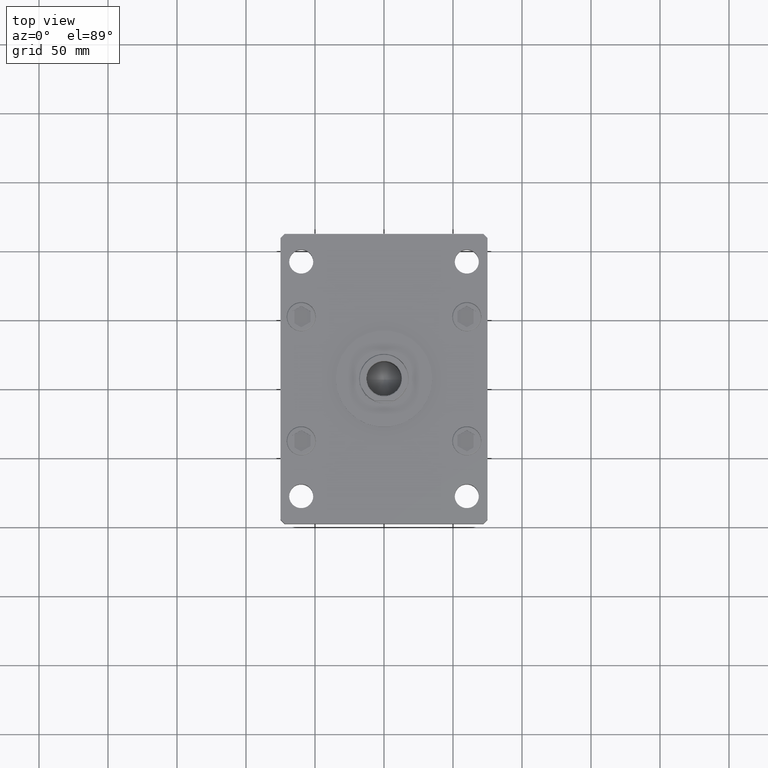
[diagram: clean part render]
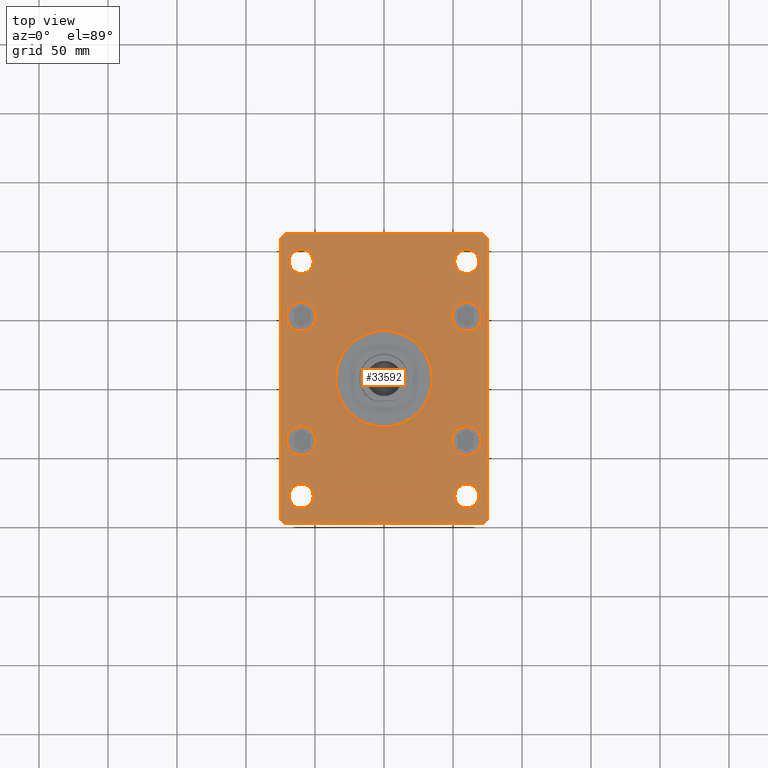
[diagram: same view with one face highlighted and labeled with its STEP entity id]
A machine part, top view. The second image highlights one B-rep face of the part: STEP entity #33592.
In plain terms, the highlighted planar face has unit normal (0, 0, 1).
Its self-contained STEP definition (entity closure, byte-faithful):
#512 = DIRECTION ( 'NONE',  ( 0.000000000000000000, 0.000000000000000000, 1.000000000000000000 ) ) ;
#564 = EDGE_CURVE ( 'NONE', #3722, #9821, #18476, .T. ) ;
#569 = EDGE_CURVE ( 'NONE', #27214, #14566, #21537, .T. ) ;
#916 = VECTOR ( 'NONE', #19822, 1000.000000000000114 ) ;
#1023 = AXIS2_PLACEMENT_3D ( 'NONE', #48198, #51457, #26909 ) ;
#1066 = ORIENTED_EDGE ( 'NONE', *, *, #569, .T. ) ;
#1118 = DIRECTION ( 'NONE',  ( -0.7071067811865459074, -0.7071067811865491270, 0.000000000000000000 ) ) ;
#1167 = CARTESIAN_POINT ( 'NONE',  ( 68.75000000000000000, 84.99999999999998579, 27.00000000000000000 ) ) ;
#1175 = DIRECTION ( 'NONE',  ( 6.802837160693364103E-17, 1.000000000000000000, 0.000000000000000000 ) ) ;
#1546 = CARTESIAN_POINT ( 'NONE',  ( 51.24999999999998579, 84.99999999999998579, 27.00000000000000000 ) ) ;
#1754 = VECTOR ( 'NONE', #38622, 1000.000000000000114 ) ;
#1787 = CARTESIAN_POINT ( 'NONE',  ( -74.99999999999998579, -102.0000000000000142, 27.00000000000000000 ) ) ;
#1795 = EDGE_LOOP ( 'NONE', ( #16044, #28292 ) ) ;
#2977 = AXIS2_PLACEMENT_3D ( 'NONE', #28286, #12160, #16186 ) ;
#3722 = VERTEX_POINT ( 'NONE', #1546 ) ;
#3753 = CARTESIAN_POINT ( 'NONE',  ( -59.99999999999997158, -85.00000000000001421, 27.00000000000000000 ) ) ;
#3807 = VERTEX_POINT ( 'NONE', #23816 ) ;
#3877 = EDGE_CURVE ( 'NONE', #3807, #32435, #45286, .T. ) ;
#3906 = PLANE ( 'NONE',  #6038 ) ;
#4178 = CARTESIAN_POINT ( 'NONE',  ( -60.00000000000000000, 45.00000000000001421, 27.00000000000000000 ) ) ;
#4191 = DIRECTION ( 'NONE',  ( 0.000000000000000000, 0.000000000000000000, 1.000000000000000000 ) ) ;
#4193 = ORIENTED_EDGE ( 'NONE', *, *, #41994, .F. ) ;
#4437 = FACE_BOUND ( 'NONE', #38119, .T. ) ;
#4533 = VERTEX_POINT ( 'NONE', #12604 ) ;
#5071 = VERTEX_POINT ( 'NONE', #10023 ) ;
#5204 = CARTESIAN_POINT ( 'NONE',  ( 75.00000000000000000, -101.9999999999999005, 27.00000000000000000 ) ) ;
#5666 = EDGE_CURVE ( 'NONE', #41428, #9609, #27229, .T. ) ;
#5744 = AXIS2_PLACEMENT_3D ( 'NONE', #12790, #4191, #49958 ) ;
#5854 = CIRCLE ( 'NONE', #51402, 8.750000000000007105 ) ;
#5987 = CARTESIAN_POINT ( 'NONE',  ( 72.00000000000001421, -104.9999999999999005, 27.00000000000000000 ) ) ;
#6038 = AXIS2_PLACEMENT_3D ( 'NONE', #48847, #12510, #11972 ) ;
#6084 = CARTESIAN_POINT ( 'NONE',  ( 60.00000000000000000, -45.00000000000000711, 27.00000000000000000 ) ) ;
#6550 = ORIENTED_EDGE ( 'NONE', *, *, #50047, .F. ) ;
#7006 = VECTOR ( 'NONE', #13512, 1000.000000000000000 ) ;
#7033 = DIRECTION ( 'NONE',  ( 1.000000000000000000, 0.000000000000000000, 0.000000000000000000 ) ) ;
#7411 = EDGE_LOOP ( 'NONE', ( #4193, #42530 ) ) ;
#7758 = CARTESIAN_POINT ( 'NONE',  ( -68.74999999999997158, -85.00000000000001421, 27.00000000000000000 ) ) ;
#7968 = EDGE_CURVE ( 'NONE', #45035, #22090, #24749, .T. ) ;
#8303 = EDGE_CURVE ( 'NONE', #17739, #17409, #5854, .T. ) ;
#8860 = EDGE_CURVE ( 'NONE', #22090, #45035, #29097, .T. ) ;
#9387 = DIRECTION ( 'NONE',  ( 1.000000000000000000, 0.000000000000000000, 0.000000000000000000 ) ) ;
#9609 = VERTEX_POINT ( 'NONE', #7758 ) ;
#9800 = AXIS2_PLACEMENT_3D ( 'NONE', #49500, #12345, #11795 ) ;
#9821 = VERTEX_POINT ( 'NONE', #1167 ) ;
#10023 = CARTESIAN_POINT ( 'NONE',  ( 75.00000000000001421, 102.0000000000000142, 27.00000000000000000 ) ) ;
#10051 = DIRECTION ( 'NONE',  ( 1.000000000000000000, 0.000000000000000000, 0.000000000000000000 ) ) ;
#10353 = ORIENTED_EDGE ( 'NONE', *, *, #53191, .F. ) ;
#10354 = CARTESIAN_POINT ( 'NONE',  ( 70.50000000000000000, -45.00000000000000711, 27.00000000000000000 ) ) ;
#10453 = CIRCLE ( 'NONE', #1023, 8.750000000000007105 ) ;
#10704 = VERTEX_POINT ( 'NONE', #10354 ) ;
#10810 = ORIENTED_EDGE ( 'NONE', *, *, #43895, .T. ) ;
#11421 = CARTESIAN_POINT ( 'NONE',  ( 60.00000000000000000, 45.00000000000000711, 27.00000000000000000 ) ) ;
#11475 = AXIS2_PLACEMENT_3D ( 'NONE', #6084, #14672, #34862 ) ;
#11618 = EDGE_CURVE ( 'NONE', #40729, #41113, #37735, .T. ) ;
#11795 = DIRECTION ( 'NONE',  ( 1.000000000000000000, 0.000000000000000000, 0.000000000000000000 ) ) ;
#11957 = AXIS2_PLACEMENT_3D ( 'NONE', #37319, #53246, #24137 ) ;
#11972 = DIRECTION ( 'NONE',  ( 1.000000000000000000, 0.000000000000000000, -0.000000000000000000 ) ) ;
#12028 = CARTESIAN_POINT ( 'NONE',  ( 49.50000000000000000, 45.00000000000000711, 27.00000000000000000 ) ) ;
#12065 = LINE ( 'NONE', #52465, #12405 ) ;
#12122 = EDGE_CURVE ( 'NONE', #43232, #4533, #47963, .T. ) ;
#12160 = DIRECTION ( 'NONE',  ( 0.000000000000000000, 0.000000000000000000, 1.000000000000000000 ) ) ;
#12345 = DIRECTION ( 'NONE',  ( 0.000000000000000000, 0.000000000000000000, 1.000000000000000000 ) ) ;
#12405 = VECTOR ( 'NONE', #36542, 1000.000000000000000 ) ;
#12508 = CARTESIAN_POINT ( 'NONE',  ( -75.00000000000001421, 102.0000000000000000, 27.00000000000000000 ) ) ;
#12510 = DIRECTION ( 'NONE',  ( 0.000000000000000000, 0.000000000000000000, 1.000000000000000000 ) ) ;
#12604 = CARTESIAN_POINT ( 'NONE',  ( -35.00000000000000711, 0.000000000000000000, 27.00000000000000000 ) ) ;
#12790 = CARTESIAN_POINT ( 'NONE',  ( -60.00000000000000000, -45.00000000000000000, 27.00000000000000000 ) ) ;
#13132 = VERTEX_POINT ( 'NONE', #50167 ) ;
#13473 = CARTESIAN_POINT ( 'NONE',  ( -71.99999999999998579, -105.0000000000000142, 27.00000000000000000 ) ) ;
#13491 = CARTESIAN_POINT ( 'NONE',  ( -51.24999999999996447, -85.00000000000001421, 27.00000000000000000 ) ) ;
#13512 = DIRECTION ( 'NONE',  ( -0.7071067811865426878, 0.7071067811865524577, 0.000000000000000000 ) ) ;
#13656 = ORIENTED_EDGE ( 'NONE', *, *, #34523, .F. ) ;
#13659 = CARTESIAN_POINT ( 'NONE',  ( 59.99999999999997158, -85.00000000000001421, 27.00000000000000000 ) ) ;
#13976 = ORIENTED_EDGE ( 'NONE', *, *, #26399, .T. ) ;
#14133 = CARTESIAN_POINT ( 'NONE',  ( -60.00000000000000000, -45.00000000000000000, 27.00000000000000000 ) ) ;
#14324 = CARTESIAN_POINT ( 'NONE',  ( 72.00000000000004263, 105.0000000000000284, 27.00000000000000000 ) ) ;
#14566 = VERTEX_POINT ( 'NONE', #12508 ) ;
#14672 = DIRECTION ( 'NONE',  ( 0.000000000000000000, 0.000000000000000000, 1.000000000000000000 ) ) ;
#15087 = CARTESIAN_POINT ( 'NONE',  ( -60.00000000000000000, 45.00000000000001421, 27.00000000000000000 ) ) ;
#15471 = CIRCLE ( 'NONE', #29245, 10.50000000000000178 ) ;
#15997 = DIRECTION ( 'NONE',  ( 0.000000000000000000, 0.000000000000000000, 1.000000000000000000 ) ) ;
#16044 = ORIENTED_EDGE ( 'NONE', *, *, #49700, .F. ) ;
#16114 = ORIENTED_EDGE ( 'NONE', *, *, #18201, .T. ) ;
#16186 = DIRECTION ( 'NONE',  ( 1.000000000000000000, 0.000000000000000000, 0.000000000000000000 ) ) ;
#16380 = CIRCLE ( 'NONE', #11957, 8.750000000000007105 ) ;
#16543 = FACE_BOUND ( 'NONE', #24167, .T. ) ;
#17409 = VERTEX_POINT ( 'NONE', #26485 ) ;
#17651 = AXIS2_PLACEMENT_3D ( 'NONE', #50378, #37689, #46043 ) ;
#17739 = VERTEX_POINT ( 'NONE', #43868 ) ;
#17993 = ORIENTED_EDGE ( 'NONE', *, *, #39250, .T. ) ;
#18002 = EDGE_CURVE ( 'NONE', #10704, #40991, #21472, .T. ) ;
#18070 = ORIENTED_EDGE ( 'NONE', *, *, #8303, .F. ) ;
#18201 = EDGE_CURVE ( 'NONE', #34869, #39552, #50258, .T. ) ;
#18476 = CIRCLE ( 'NONE', #17651, 8.750000000000007105 ) ;
#19085 = CIRCLE ( 'NONE', #49205, 10.50000000000000178 ) ;
#19328 = CARTESIAN_POINT ( 'NONE',  ( -75.00000000000001421, 102.0000000000000000, 27.00000000000000000 ) ) ;
#19760 = FACE_OUTER_BOUND ( 'NONE', #33934, .T. ) ;
#19822 = DIRECTION ( 'NONE',  ( 0.7071067811865459074, 0.7071067811865491270, 0.000000000000000000 ) ) ;
#20092 = CARTESIAN_POINT ( 'NONE',  ( 72.00000000000001421, -104.9999999999999005, 27.00000000000000000 ) ) ;
#20359 = AXIS2_PLACEMENT_3D ( 'NONE', #3753, #36563, #53020 ) ;
#20568 = DIRECTION ( 'NONE',  ( 0.000000000000000000, 0.000000000000000000, 1.000000000000000000 ) ) ;
#21313 = ORIENTED_EDGE ( 'NONE', *, *, #3877, .F. ) ;
#21472 = CIRCLE ( 'NONE', #51592, 10.49999999999999467 ) ;
#21537 = LINE ( 'NONE', #37959, #29675 ) ;
#22090 = VERTEX_POINT ( 'NONE', #22546 ) ;
#22546 = CARTESIAN_POINT ( 'NONE',  ( -51.25000000000000000, 84.99999999999997158, 27.00000000000000000 ) ) ;
#22769 = EDGE_CURVE ( 'NONE', #5071, #13132, #33704, .T. ) ;
#23426 = ORIENTED_EDGE ( 'NONE', *, *, #53062, .F. ) ;
#23816 = CARTESIAN_POINT ( 'NONE',  ( -70.50000000000000000, -45.00000000000000000, 27.00000000000000000 ) ) ;
#24137 = DIRECTION ( 'NONE',  ( 1.000000000000000000, 0.000000000000000000, 0.000000000000000000 ) ) ;
#24167 = EDGE_LOOP ( 'NONE', ( #40064, #28282 ) ) ;
#24333 = FACE_BOUND ( 'NONE', #1795, .T. ) ;
#24606 = CARTESIAN_POINT ( 'NONE',  ( -60.00000000000000711, 84.99999999999997158, 27.00000000000000000 ) ) ;
#24749 = CIRCLE ( 'NONE', #44497, 8.750000000000007105 ) ;
#24875 = FACE_BOUND ( 'NONE', #36270, .T. ) ;
#24882 = DIRECTION ( 'NONE',  ( 1.000000000000000000, 0.000000000000000000, 0.000000000000000000 ) ) ;
#25221 = VERTEX_POINT ( 'NONE', #35437 ) ;
#25713 = DIRECTION ( 'NONE',  ( 1.000000000000000000, 0.000000000000000000, 0.000000000000000000 ) ) ;
#26059 = DIRECTION ( 'NONE',  ( 0.000000000000000000, 0.000000000000000000, 1.000000000000000000 ) ) ;
#26158 = LINE ( 'NONE', #5204, #37037 ) ;
#26175 = CARTESIAN_POINT ( 'NONE',  ( -49.49999999999999289, -45.00000000000000000, 27.00000000000000000 ) ) ;
#26399 = EDGE_CURVE ( 'NONE', #39552, #27851, #12065, .T. ) ;
#26485 = CARTESIAN_POINT ( 'NONE',  ( 51.24999999999995737, -85.00000000000001421, 27.00000000000000000 ) ) ;
#26909 = DIRECTION ( 'NONE',  ( 1.000000000000000000, 0.000000000000000000, 0.000000000000000000 ) ) ;
#26935 = ORIENTED_EDGE ( 'NONE', *, *, #8860, .F. ) ;
#27129 = DIRECTION ( 'NONE',  ( 1.360567432138672081E-16, -1.000000000000000000, 0.000000000000000000 ) ) ;
#27214 = VERTEX_POINT ( 'NONE', #41216 ) ;
#27229 = CIRCLE ( 'NONE', #20359, 8.750000000000007105 ) ;
#27378 = EDGE_LOOP ( 'NONE', ( #45827, #48270 ) ) ;
#27815 = DIRECTION ( 'NONE',  ( 1.000000000000000000, 0.000000000000000000, 0.000000000000000000 ) ) ;
#27851 = VERTEX_POINT ( 'NONE', #5987 ) ;
#28282 = ORIENTED_EDGE ( 'NONE', *, *, #18002, .F. ) ;
#28286 = CARTESIAN_POINT ( 'NONE',  ( 0.000000000000000000, 0.000000000000000000, 27.00000000000000000 ) ) ;
#28292 = ORIENTED_EDGE ( 'NONE', *, *, #12122, .F. ) ;
#29097 = CIRCLE ( 'NONE', #31653, 8.750000000000007105 ) ;
#29245 = AXIS2_PLACEMENT_3D ( 'NONE', #4178, #20568, #24882 ) ;
#29675 = VECTOR ( 'NONE', #1118, 1000.000000000000114 ) ;
#29890 = AXIS2_PLACEMENT_3D ( 'NONE', #11421, #47773, #27815 ) ;
#30016 = DIRECTION ( 'NONE',  ( 0.000000000000000000, 0.000000000000000000, 1.000000000000000000 ) ) ;
#30047 = CARTESIAN_POINT ( 'NONE',  ( 35.00000000000000711, 4.286263797015737285E-15, 27.00000000000000000 ) ) ;
#30892 = EDGE_LOOP ( 'NONE', ( #34353, #26935 ) ) ;
#31653 = AXIS2_PLACEMENT_3D ( 'NONE', #46795, #26059, #50861 ) ;
#32435 = VERTEX_POINT ( 'NONE', #26175 ) ;
#32958 = FACE_BOUND ( 'NONE', #7411, .T. ) ;
#33592 = ADVANCED_FACE ( 'NONE', ( #24333, #53175, #16543, #45069, #32958, #19760, #49400, #4437, #24875, #41315 ), #3906, .T. ) ;
#33704 = LINE ( 'NONE', #46085, #7006 ) ;
#33834 = ORIENTED_EDGE ( 'NONE', *, *, #43643, .F. ) ;
#33934 = EDGE_LOOP ( 'NONE', ( #13976, #52201, #17993, #45840, #35944, #1066, #10810, #16114 ) ) ;
#34075 = EDGE_CURVE ( 'NONE', #9821, #3722, #16380, .T. ) ;
#34104 = DIRECTION ( 'NONE',  ( 1.000000000000000000, 0.000000000000000000, 0.000000000000000000 ) ) ;
#34287 = ORIENTED_EDGE ( 'NONE', *, *, #11618, .F. ) ;
#34353 = ORIENTED_EDGE ( 'NONE', *, *, #7968, .F. ) ;
#34523 = EDGE_CURVE ( 'NONE', #25221, #42578, #15471, .T. ) ;
#34751 = AXIS2_PLACEMENT_3D ( 'NONE', #14133, #30016, #25713 ) ;
#34862 = DIRECTION ( 'NONE',  ( 1.000000000000000000, 0.000000000000000000, 0.000000000000000000 ) ) ;
#34869 = VERTEX_POINT ( 'NONE', #47132 ) ;
#35437 = CARTESIAN_POINT ( 'NONE',  ( -70.50000000000000000, 45.00000000000001421, 27.00000000000000000 ) ) ;
#35558 = DIRECTION ( 'NONE',  ( 0.000000000000000000, 0.000000000000000000, 1.000000000000000000 ) ) ;
#35882 = CARTESIAN_POINT ( 'NONE',  ( 0.000000000000000000, 0.000000000000000000, 27.00000000000000000 ) ) ;
#35944 = ORIENTED_EDGE ( 'NONE', *, *, #47133, .T. ) ;
#36270 = EDGE_LOOP ( 'NONE', ( #23426, #34287 ) ) ;
#36519 = CARTESIAN_POINT ( 'NONE',  ( 75.00000000000000000, -101.9999999999999005, 27.00000000000000000 ) ) ;
#36542 = DIRECTION ( 'NONE',  ( 1.000000000000000000, 7.709882115452476194E-16, 0.000000000000000000 ) ) ;
#36563 = DIRECTION ( 'NONE',  ( 0.000000000000000000, 0.000000000000000000, 1.000000000000000000 ) ) ;
#36779 = LINE ( 'NONE', #20092, #916 ) ;
#37037 = VECTOR ( 'NONE', #1175, 1000.000000000000000 ) ;
#37205 = CARTESIAN_POINT ( 'NONE',  ( -49.49999999999999289, 45.00000000000001421, 27.00000000000000000 ) ) ;
#37319 = CARTESIAN_POINT ( 'NONE',  ( 60.00000000000000000, 84.99999999999998579, 27.00000000000000000 ) ) ;
#37334 = EDGE_LOOP ( 'NONE', ( #10353, #18070 ) ) ;
#37687 = EDGE_CURVE ( 'NONE', #27851, #48746, #36779, .T. ) ;
#37689 = DIRECTION ( 'NONE',  ( 0.000000000000000000, 0.000000000000000000, 1.000000000000000000 ) ) ;
#37735 = CIRCLE ( 'NONE', #29890, 10.49999999999999467 ) ;
#37959 = CARTESIAN_POINT ( 'NONE',  ( -72.00000000000002842, 105.0000000000000000, 27.00000000000000000 ) ) ;
#38119 = EDGE_LOOP ( 'NONE', ( #21313, #6550 ) ) ;
#38140 = CIRCLE ( 'NONE', #9800, 10.49999999999999467 ) ;
#38180 = CIRCLE ( 'NONE', #34751, 10.50000000000000178 ) ;
#38622 = DIRECTION ( 'NONE',  ( 0.7071067811865474617, -0.7071067811865474617, 0.000000000000000000 ) ) ;
#38685 = CARTESIAN_POINT ( 'NONE',  ( 60.00000000000000000, -45.00000000000000711, 27.00000000000000000 ) ) ;
#39250 = EDGE_CURVE ( 'NONE', #48746, #5071, #26158, .T. ) ;
#39552 = VERTEX_POINT ( 'NONE', #13473 ) ;
#39720 = VECTOR ( 'NONE', #27129, 1000.000000000000000 ) ;
#40064 = ORIENTED_EDGE ( 'NONE', *, *, #52021, .F. ) ;
#40358 = CARTESIAN_POINT ( 'NONE',  ( 70.50000000000000000, 45.00000000000000711, 27.00000000000000000 ) ) ;
#40591 = EDGE_LOOP ( 'NONE', ( #13656, #33834 ) ) ;
#40729 = VERTEX_POINT ( 'NONE', #40358 ) ;
#40991 = VERTEX_POINT ( 'NONE', #43265 ) ;
#41113 = VERTEX_POINT ( 'NONE', #12028 ) ;
#41216 = CARTESIAN_POINT ( 'NONE',  ( -72.00000000000002842, 105.0000000000000000, 27.00000000000000000 ) ) ;
#41315 = FACE_BOUND ( 'NONE', #37334, .T. ) ;
#41428 = VERTEX_POINT ( 'NONE', #13491 ) ;
#41877 = CARTESIAN_POINT ( 'NONE',  ( -68.75000000000000000, 84.99999999999997158, 27.00000000000000000 ) ) ;
#41994 = EDGE_CURVE ( 'NONE', #9609, #41428, #10453, .T. ) ;
#42530 = ORIENTED_EDGE ( 'NONE', *, *, #5666, .F. ) ;
#42578 = VERTEX_POINT ( 'NONE', #37205 ) ;
#43232 = VERTEX_POINT ( 'NONE', #30047 ) ;
#43265 = CARTESIAN_POINT ( 'NONE',  ( 49.50000000000000000, -45.00000000000000711, 27.00000000000000000 ) ) ;
#43301 = LINE ( 'NONE', #19328, #39720 ) ;
#43643 = EDGE_CURVE ( 'NONE', #42578, #25221, #19085, .T. ) ;
#43868 = CARTESIAN_POINT ( 'NONE',  ( 68.74999999999997158, -85.00000000000001421, 27.00000000000000000 ) ) ;
#43895 = EDGE_CURVE ( 'NONE', #14566, #34869, #43301, .T. ) ;
#44497 = AXIS2_PLACEMENT_3D ( 'NONE', #24606, #15997, #52643 ) ;
#45035 = VERTEX_POINT ( 'NONE', #41877 ) ;
#45069 = FACE_BOUND ( 'NONE', #30892, .T. ) ;
#45286 = CIRCLE ( 'NONE', #5744, 10.50000000000000178 ) ;
#45827 = ORIENTED_EDGE ( 'NONE', *, *, #564, .F. ) ;
#45840 = ORIENTED_EDGE ( 'NONE', *, *, #22769, .T. ) ;
#45877 = AXIS2_PLACEMENT_3D ( 'NONE', #13659, #512, #34104 ) ;
#46043 = DIRECTION ( 'NONE',  ( 1.000000000000000000, 0.000000000000000000, 0.000000000000000000 ) ) ;
#46085 = CARTESIAN_POINT ( 'NONE',  ( 75.00000000000001421, 102.0000000000000142, 27.00000000000000000 ) ) ;
#46245 = DIRECTION ( 'NONE',  ( 0.000000000000000000, 0.000000000000000000, 1.000000000000000000 ) ) ;
#46374 = DIRECTION ( 'NONE',  ( -1.000000000000000000, -1.927470528863118062E-16, 0.000000000000000000 ) ) ;
#46795 = CARTESIAN_POINT ( 'NONE',  ( -60.00000000000000711, 84.99999999999997158, 27.00000000000000000 ) ) ;
#47132 = CARTESIAN_POINT ( 'NONE',  ( -74.99999999999998579, -102.0000000000000142, 27.00000000000000000 ) ) ;
#47133 = EDGE_CURVE ( 'NONE', #13132, #27214, #50971, .T. ) ;
#47454 = DIRECTION ( 'NONE',  ( 0.000000000000000000, 0.000000000000000000, 1.000000000000000000 ) ) ;
#47473 = DIRECTION ( 'NONE',  ( 1.000000000000000000, 0.000000000000000000, 0.000000000000000000 ) ) ;
#47773 = DIRECTION ( 'NONE',  ( 0.000000000000000000, 0.000000000000000000, 1.000000000000000000 ) ) ;
#47963 = CIRCLE ( 'NONE', #48933, 35.00000000000000711 ) ;
#48198 = CARTESIAN_POINT ( 'NONE',  ( -59.99999999999997158, -85.00000000000001421, 27.00000000000000000 ) ) ;
#48270 = ORIENTED_EDGE ( 'NONE', *, *, #34075, .F. ) ;
#48456 = VECTOR ( 'NONE', #46374, 1000.000000000000000 ) ;
#48746 = VERTEX_POINT ( 'NONE', #36519 ) ;
#48847 = CARTESIAN_POINT ( 'NONE',  ( 0.000000000000000000, 0.000000000000000000, 27.00000000000000000 ) ) ;
#48933 = AXIS2_PLACEMENT_3D ( 'NONE', #35882, #51803, #47473 ) ;
#49205 = AXIS2_PLACEMENT_3D ( 'NONE', #15087, #35558, #7033 ) ;
#49358 = CIRCLE ( 'NONE', #45877, 8.750000000000007105 ) ;
#49400 = FACE_BOUND ( 'NONE', #27378, .T. ) ;
#49403 = CIRCLE ( 'NONE', #2977, 35.00000000000000711 ) ;
#49500 = CARTESIAN_POINT ( 'NONE',  ( 60.00000000000000000, 45.00000000000000711, 27.00000000000000000 ) ) ;
#49700 = EDGE_CURVE ( 'NONE', #4533, #43232, #49403, .T. ) ;
#49958 = DIRECTION ( 'NONE',  ( 1.000000000000000000, 0.000000000000000000, 0.000000000000000000 ) ) ;
#50047 = EDGE_CURVE ( 'NONE', #32435, #3807, #38180, .T. ) ;
#50167 = CARTESIAN_POINT ( 'NONE',  ( 72.00000000000004263, 105.0000000000000284, 27.00000000000000000 ) ) ;
#50209 = CIRCLE ( 'NONE', #11475, 10.49999999999999467 ) ;
#50258 = LINE ( 'NONE', #1787, #1754 ) ;
#50378 = CARTESIAN_POINT ( 'NONE',  ( 60.00000000000000000, 84.99999999999998579, 27.00000000000000000 ) ) ;
#50861 = DIRECTION ( 'NONE',  ( 1.000000000000000000, 0.000000000000000000, 0.000000000000000000 ) ) ;
#50971 = LINE ( 'NONE', #14324, #48456 ) ;
#51248 = CARTESIAN_POINT ( 'NONE',  ( 59.99999999999997158, -85.00000000000001421, 27.00000000000000000 ) ) ;
#51402 = AXIS2_PLACEMENT_3D ( 'NONE', #51248, #47454, #10051 ) ;
#51457 = DIRECTION ( 'NONE',  ( 0.000000000000000000, 0.000000000000000000, 1.000000000000000000 ) ) ;
#51592 = AXIS2_PLACEMENT_3D ( 'NONE', #38685, #46245, #9387 ) ;
#51803 = DIRECTION ( 'NONE',  ( 0.000000000000000000, 0.000000000000000000, 1.000000000000000000 ) ) ;
#52021 = EDGE_CURVE ( 'NONE', #40991, #10704, #50209, .T. ) ;
#52201 = ORIENTED_EDGE ( 'NONE', *, *, #37687, .T. ) ;
#52465 = CARTESIAN_POINT ( 'NONE',  ( -71.99999999999998579, -105.0000000000000142, 27.00000000000000000 ) ) ;
#52643 = DIRECTION ( 'NONE',  ( 1.000000000000000000, 0.000000000000000000, 0.000000000000000000 ) ) ;
#53020 = DIRECTION ( 'NONE',  ( 1.000000000000000000, 0.000000000000000000, 0.000000000000000000 ) ) ;
#53062 = EDGE_CURVE ( 'NONE', #41113, #40729, #38140, .T. ) ;
#53175 = FACE_BOUND ( 'NONE', #40591, .T. ) ;
#53191 = EDGE_CURVE ( 'NONE', #17409, #17739, #49358, .T. ) ;
#53246 = DIRECTION ( 'NONE',  ( 0.000000000000000000, 0.000000000000000000, 1.000000000000000000 ) ) ;